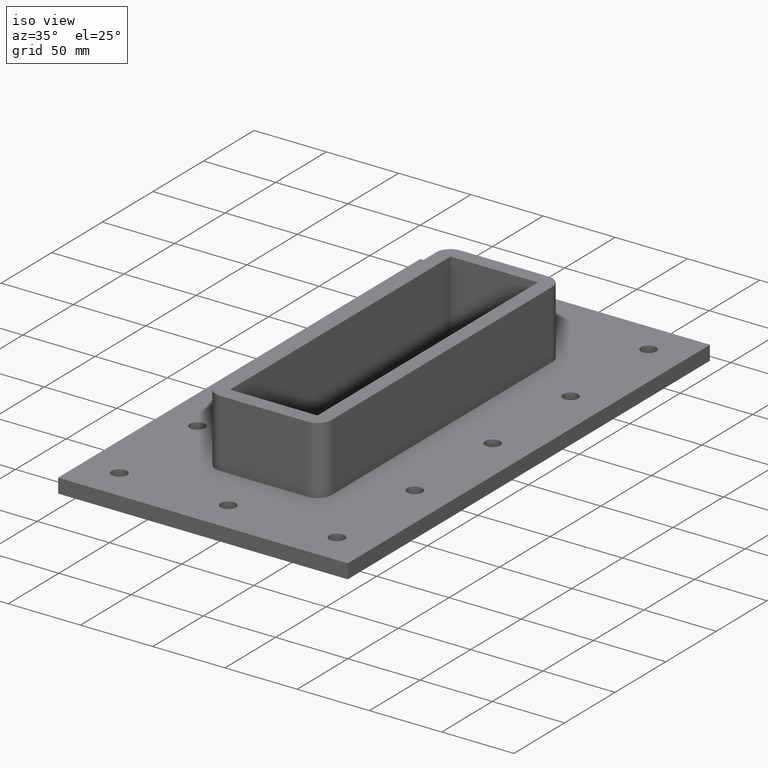
[diagram: clean part render]
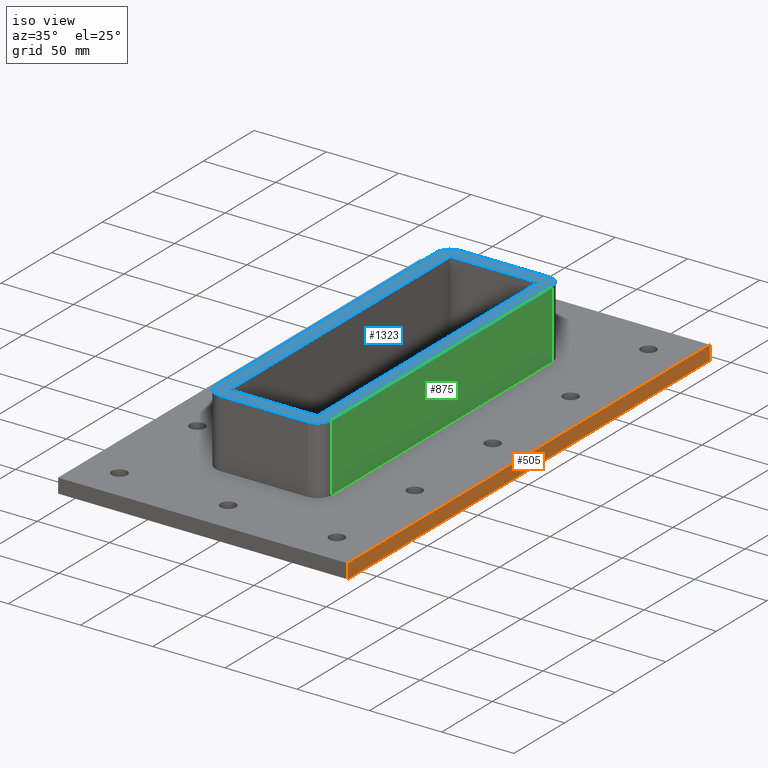
[diagram: same view with three faces highlighted in distinct colors, each labeled with its STEP entity id]
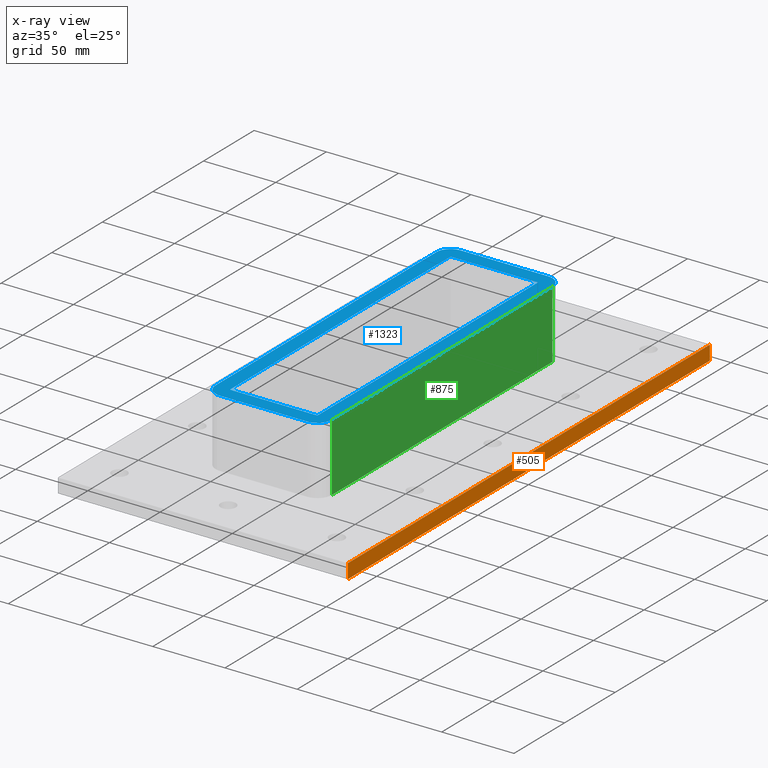
[diagram: x-ray of the same camera — body ghosted, the three highlighted faces saturated]
A machine part, iso view with three faces highlighted in distinct colors.
The next image is the same camera in x-ray (body ghosted, the three faces saturated) — at least one of them is partly hidden behind the body in this view.
Their STEP definitions:

[orange] entity #505 — the highlighted planar face has unit normal (1, 0, 0).
#449=CARTESIAN_POINT('',(100.24999999999999,179.00000000000003,-27.0));
#450=VERTEX_POINT('',#449);
#458=CARTESIAN_POINT('',(100.24999999999999,179.00000000000003,-17.0));
#459=VERTEX_POINT('',#458);
#466=CARTESIAN_POINT('',(100.24999999999999,179.00000000000003,-27.0));
#467=DIRECTION('',(0.0,0.0,1.0));
#468=VECTOR('',#467,10.0);
#469=LINE('',#466,#468);
#470=EDGE_CURVE('',#450,#459,#469,.T.);
#475=CARTESIAN_POINT('',(100.24999999999999,-179.00000000000003,-27.0));
#476=DIRECTION('',(1.0,0.0,0.0));
#477=DIRECTION('',(0.0,1.0,0.0));
#478=AXIS2_PLACEMENT_3D('',#475,#476,#477);
#479=PLANE('',#478);
#480=CARTESIAN_POINT('',(100.24999999999999,-179.00000000000003,-27.0));
#481=VERTEX_POINT('',#480);
#482=CARTESIAN_POINT('',(100.24999999999999,179.00000000000003,-27.0));
#483=DIRECTION('',(0.0,-1.0,0.0));
#484=VECTOR('',#483,358.00000000000006);
#485=LINE('',#482,#484);
#486=EDGE_CURVE('',#450,#481,#485,.T.);
#487=ORIENTED_EDGE('',*,*,#486,.F.);
#488=ORIENTED_EDGE('',*,*,#470,.T.);
#489=CARTESIAN_POINT('',(100.24999999999999,-179.00000000000003,-17.0));
#490=VERTEX_POINT('',#489);
#491=CARTESIAN_POINT('',(100.24999999999999,-179.00000000000003,-17.0));
#492=DIRECTION('',(0.0,1.0,0.0));
#493=VECTOR('',#492,358.00000000000006);
#494=LINE('',#491,#493);
#495=EDGE_CURVE('',#490,#459,#494,.T.);
#496=ORIENTED_EDGE('',*,*,#495,.F.);
#497=CARTESIAN_POINT('',(100.24999999999999,-179.00000000000003,-27.0));
#498=DIRECTION('',(0.0,0.0,1.0));
#499=VECTOR('',#498,10.0);
#500=LINE('',#497,#499);
#501=EDGE_CURVE('',#481,#490,#500,.T.);
#502=ORIENTED_EDGE('',*,*,#501,.F.);
#503=EDGE_LOOP('',(#487,#488,#496,#502));
#504=FACE_OUTER_BOUND('',#503,.T.);
#505=ADVANCED_FACE('',(#504),#479,.T.);

[blue] entity #1323 — the highlighted planar face has unit normal (0, 0, 1).
#802=CARTESIAN_POINT('',(40.249999999999986,-108.99999999999984,30.0));
#803=VERTEX_POINT('',#802);
#810=CARTESIAN_POINT('',(30.249999999999986,-118.99999999999984,30.0));
#811=VERTEX_POINT('',#810);
#812=CARTESIAN_POINT('',(30.249999999999982,-108.99999999999984,30.0));
#813=DIRECTION('',(0.0,0.0,-1.0));
#814=DIRECTION('',(0.707106781186548,-0.707106781186547,0.0));
#815=AXIS2_PLACEMENT_3D('',#812,#813,#814);
#816=CIRCLE('',#815,10.0);
#817=EDGE_CURVE('',#803,#811,#816,.T.);
#858=CARTESIAN_POINT('',(40.249999999999915,109.00000000000013,30.0));
#859=VERTEX_POINT('',#858);
#866=CARTESIAN_POINT('',(40.249999999999986,-108.99999999999984,30.0));
#867=DIRECTION('',(0.0,1.0,0.0));
#868=VECTOR('',#867,217.99999999999997);
#869=LINE('',#866,#868);
#870=EDGE_CURVE('',#803,#859,#869,.T.);
#907=CARTESIAN_POINT('',(30.249999999999918,119.00000000000013,30.0));
#908=VERTEX_POINT('',#907);
#915=CARTESIAN_POINT('',(30.249999999999915,109.00000000000013,30.0));
#916=DIRECTION('',(0.0,0.0,-1.0));
#917=DIRECTION('',(0.707106781186547,0.707106781186547,0.0));
#918=AXIS2_PLACEMENT_3D('',#915,#916,#917);
#919=CIRCLE('',#918,9.999999999999998);
#920=EDGE_CURVE('',#908,#859,#919,.T.);
#956=CARTESIAN_POINT('',(-30.250000000000057,119.00000000000017,30.0));
#957=VERTEX_POINT('',#956);
#964=CARTESIAN_POINT('',(30.249999999999918,119.00000000000013,30.0));
#965=DIRECTION('',(-1.0,0.0,0.0));
#966=VECTOR('',#965,60.499999999999972);
#967=LINE('',#964,#966);
#968=EDGE_CURVE('',#908,#957,#967,.T.);
#1076=CARTESIAN_POINT('',(-30.249999999999989,-118.99999999999984,30.0));
#1077=VERTEX_POINT('',#1076);
#1078=CARTESIAN_POINT('',(-30.249999999999989,-118.99999999999984,30.0));
#1079=DIRECTION('',(1.0,0.0,0.0));
#1080=VECTOR('',#1079,60.499999999999972);
#1081=LINE('',#1078,#1080);
#1082=EDGE_CURVE('',#1077,#811,#1081,.T.);
#1100=CARTESIAN_POINT('',(-40.249999999999986,-108.99999999999984,30.0));
#1101=VERTEX_POINT('',#1100);
#1102=CARTESIAN_POINT('',(-30.249999999999989,-108.99999999999984,30.0));
#1103=DIRECTION('',(0.0,0.0,-1.0));
#1104=DIRECTION('',(-0.707106781186547,-0.707106781186548,0.0));
#1105=AXIS2_PLACEMENT_3D('',#1102,#1103,#1104);
#1106=CIRCLE('',#1105,9.999999999999998);
#1107=EDGE_CURVE('',#1077,#1101,#1106,.T.);
#1124=CARTESIAN_POINT('',(-40.250000000000057,109.00000000000017,30.0));
#1125=VERTEX_POINT('',#1124);
#1132=CARTESIAN_POINT('',(-30.250000000000057,109.00000000000017,30.0));
#1133=DIRECTION('',(0.0,0.0,-1.0));
#1134=DIRECTION('',(-0.707106781186547,0.707106781186547,0.0));
#1135=AXIS2_PLACEMENT_3D('',#1132,#1133,#1134);
#1136=CIRCLE('',#1135,9.999999999999998);
#1137=EDGE_CURVE('',#1125,#957,#1136,.T.);
#1183=CARTESIAN_POINT('',(-30.250000000000057,108.99999999999764,30.0));
#1184=VERTEX_POINT('',#1183);
#1191=CARTESIAN_POINT('',(-30.249999999999986,-109.00000000000259,30.0));
#1192=VERTEX_POINT('',#1191);
#1193=CARTESIAN_POINT('',(-30.249999999999986,-109.00000000000259,30.0));
#1194=DIRECTION('',(0.0,1.0,0.0));
#1195=VECTOR('',#1194,218.00000000000023);
#1196=LINE('',#1193,#1195);
#1197=EDGE_CURVE('',#1192,#1184,#1196,.T.);
#1215=CARTESIAN_POINT('',(30.250000000000057,-109.00000000000236,30.0));
#1216=VERTEX_POINT('',#1215);
#1217=CARTESIAN_POINT('',(30.250000000000057,-109.00000000000236,30.0));
#1218=DIRECTION('',(-1.0,0.0,0.0));
#1219=VECTOR('',#1218,60.500000000000043);
#1220=LINE('',#1217,#1219);
#1221=EDGE_CURVE('',#1216,#1192,#1220,.T.);
#1239=CARTESIAN_POINT('',(30.250000000000057,108.99999999999764,30.0));
#1240=VERTEX_POINT('',#1239);
#1241=CARTESIAN_POINT('',(30.250000000000057,108.99999999999764,30.0));
#1242=DIRECTION('',(0.0,-1.0,0.0));
#1243=VECTOR('',#1242,218.0);
#1244=LINE('',#1241,#1243);
#1245=EDGE_CURVE('',#1240,#1216,#1244,.T.);
#1263=CARTESIAN_POINT('',(-30.250000000000057,108.99999999999764,30.0));
#1264=DIRECTION('',(1.0,0.0,0.0));
#1265=VECTOR('',#1264,60.500000000000114);
#1266=LINE('',#1263,#1265);
#1267=EDGE_CURVE('',#1184,#1240,#1266,.T.);
#1280=CARTESIAN_POINT('',(-40.250000000000057,109.00000000000017,30.0));
#1281=DIRECTION('',(0.0,-1.0,0.0));
#1282=VECTOR('',#1281,218.0);
#1283=LINE('',#1280,#1282);
#1284=EDGE_CURVE('',#1125,#1101,#1283,.T.);
#1302=CARTESIAN_POINT('',(-3.680991E-014,1.517572E-013,30.0));
#1303=DIRECTION('',(0.0,0.0,1.0));
#1304=DIRECTION('',(1.0,0.0,0.0));
#1305=AXIS2_PLACEMENT_3D('',#1302,#1303,#1304);
#1306=PLANE('',#1305);
#1307=ORIENTED_EDGE('',*,*,#817,.F.);
#1308=ORIENTED_EDGE('',*,*,#870,.T.);
#1309=ORIENTED_EDGE('',*,*,#920,.F.);
#1310=ORIENTED_EDGE('',*,*,#968,.T.);
#1311=ORIENTED_EDGE('',*,*,#1137,.F.);
#1312=ORIENTED_EDGE('',*,*,#1284,.T.);
#1313=ORIENTED_EDGE('',*,*,#1107,.F.);
#1314=ORIENTED_EDGE('',*,*,#1082,.T.);
#1315=EDGE_LOOP('',(#1307,#1308,#1309,#1310,#1311,#1312,#1313,#1314));
#1316=FACE_OUTER_BOUND('',#1315,.T.);
#1317=ORIENTED_EDGE('',*,*,#1245,.T.);
#1318=ORIENTED_EDGE('',*,*,#1221,.T.);
#1319=ORIENTED_EDGE('',*,*,#1197,.T.);
#1320=ORIENTED_EDGE('',*,*,#1267,.T.);
#1321=EDGE_LOOP('',(#1317,#1318,#1319,#1320));
#1322=FACE_BOUND('',#1321,.T.);
#1323=ADVANCED_FACE('',(#1316,#1322),#1306,.T.);

[green] entity #875 — the highlighted planar face has unit normal (1, 0, 0).
#575=CARTESIAN_POINT('',(40.249999999999915,109.00000000000003,-17.0));
#576=VERTEX_POINT('',#575);
#586=CARTESIAN_POINT('',(40.250000000000057,-109.00000000000003,-17.0));
#587=VERTEX_POINT('',#586);
#588=CARTESIAN_POINT('',(40.249999999999986,-109.00000000000001,-17.0));
#589=DIRECTION('',(0.0,1.0,0.0));
#590=VECTOR('',#589,218.00000000000006);
#591=LINE('',#588,#590);
#592=EDGE_CURVE('',#587,#576,#591,.T.);
#802=CARTESIAN_POINT('',(40.249999999999986,-108.99999999999984,30.0));
#803=VERTEX_POINT('',#802);
#804=CARTESIAN_POINT('',(40.249999999999986,-108.99999999999984,-17.0));
#805=DIRECTION('',(0.0,0.0,1.0));
#806=VECTOR('',#805,47.0);
#807=LINE('',#804,#806);
#808=EDGE_CURVE('',#587,#803,#807,.T.);
#852=CARTESIAN_POINT('',(40.249999999999986,-118.99999999999984,0.0));
#853=DIRECTION('',(1.0,0.0,0.0));
#854=DIRECTION('',(0.0,1.0,0.0));
#855=AXIS2_PLACEMENT_3D('',#852,#853,#854);
#856=PLANE('',#855);
#857=ORIENTED_EDGE('',*,*,#592,.T.);
#858=CARTESIAN_POINT('',(40.249999999999915,109.00000000000013,30.0));
#859=VERTEX_POINT('',#858);
#860=CARTESIAN_POINT('',(40.249999999999915,109.00000000000013,30.0));
#861=DIRECTION('',(0.0,0.0,-1.0));
#862=VECTOR('',#861,47.0);
#863=LINE('',#860,#862);
#864=EDGE_CURVE('',#859,#576,#863,.T.);
#865=ORIENTED_EDGE('',*,*,#864,.F.);
#866=CARTESIAN_POINT('',(40.249999999999986,-108.99999999999984,30.0));
#867=DIRECTION('',(0.0,1.0,0.0));
#868=VECTOR('',#867,217.99999999999997);
#869=LINE('',#866,#868);
#870=EDGE_CURVE('',#803,#859,#869,.T.);
#871=ORIENTED_EDGE('',*,*,#870,.F.);
#872=ORIENTED_EDGE('',*,*,#808,.F.);
#873=EDGE_LOOP('',(#857,#865,#871,#872));
#874=FACE_OUTER_BOUND('',#873,.T.);
#875=ADVANCED_FACE('',(#874),#856,.T.);